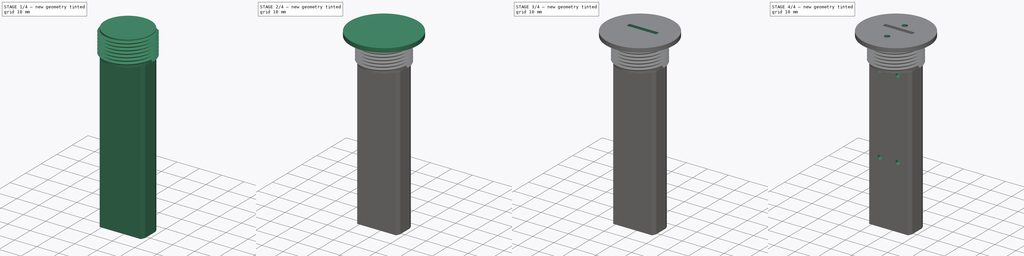
[diagram: build sequence overview — one tinted view per stage of 4, left to right]
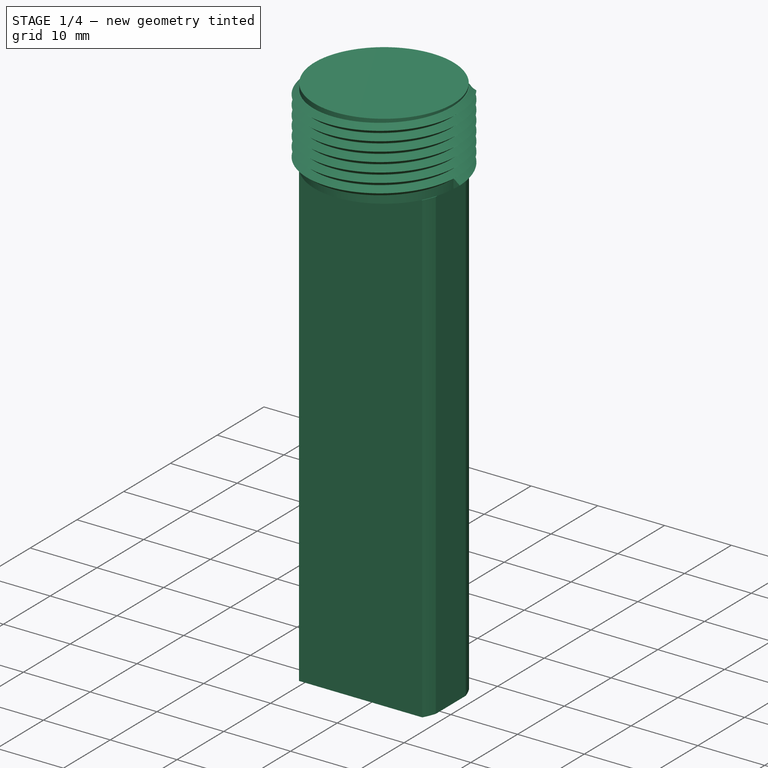
[diagram: stage 1 of 4 — iso view after this stage's code; geometry added in this stage tinted green]
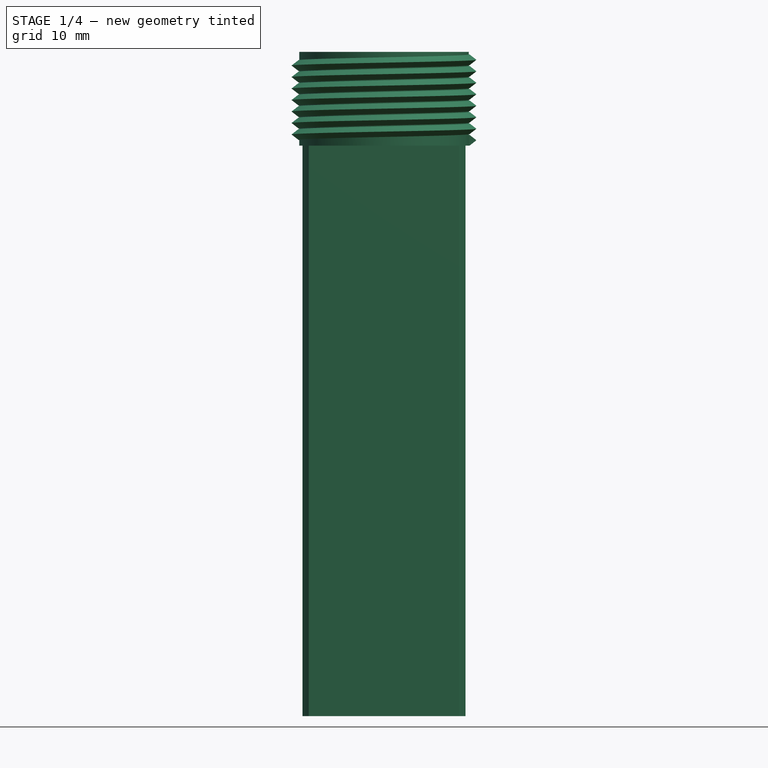
[diagram: stage 1 of 4 — front view after this stage's code; geometry added in this stage tinted green]
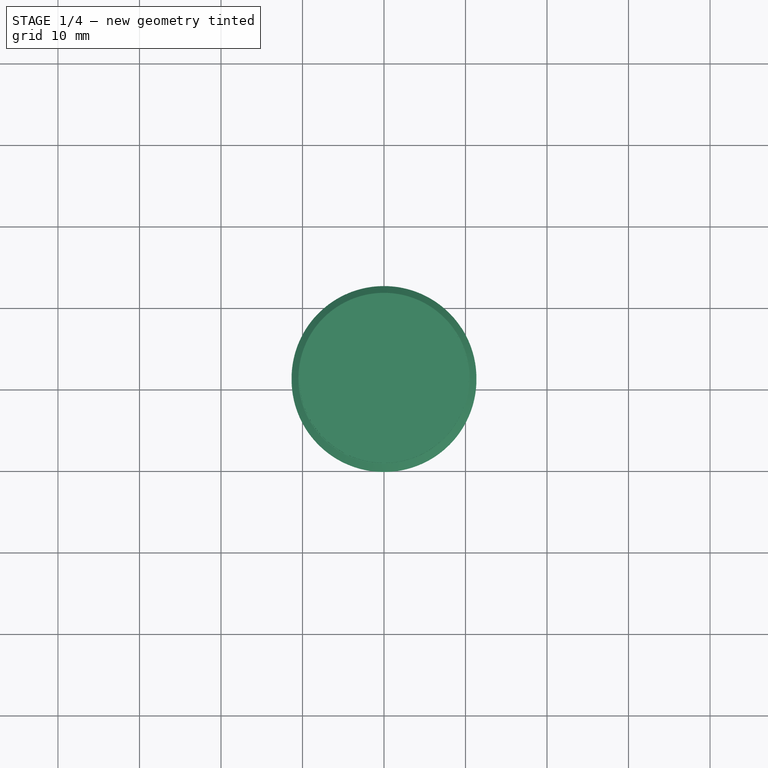
[diagram: stage 1 of 4 — top view after this stage's code; geometry added in this stage tinted green]
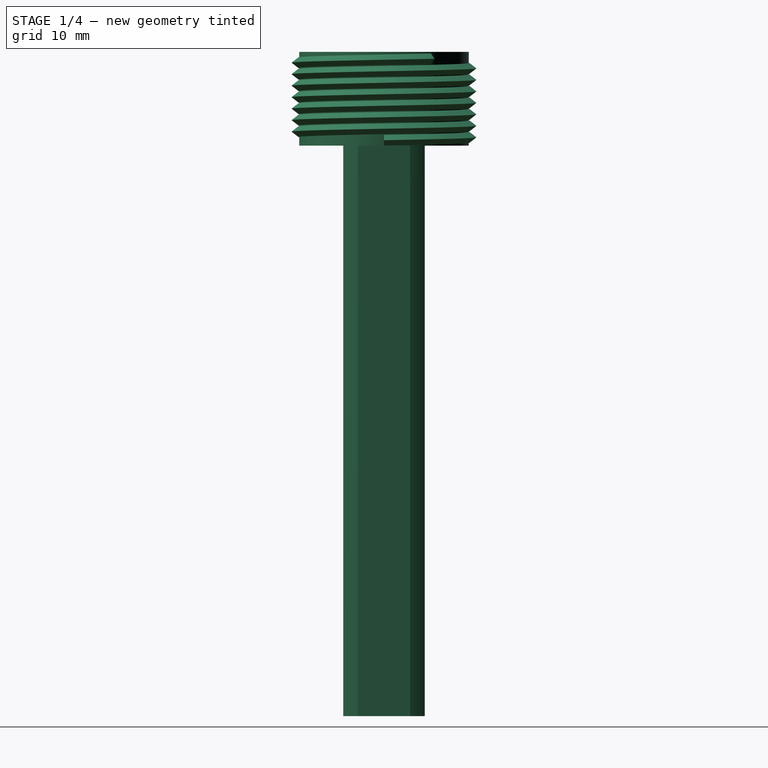
[diagram: stage 1 of 4 — right view after this stage's code; geometry added in this stage tinted green]
FCSTD DOCUMENT  (FreeCAD 0.19R24276 (Git))
Label: Probe_top_sop18_v2
License: All rights reserved
LicenseURL: http://en.wikipedia.org/wiki/All_rights_reserved
objects: Sketcher::SketchObject×11, PartDesign::Pocket×7, PartDesign::Pad×3, Part::Helix×1, PartDesign::FeatureBase×1, PartDesign::AdditivePipe×1, PartDesign::LinearPattern×1, PartDesign::Body×1
note: 37 computed .brp shape members not serialized (recipe doc carries the construction recipe); baked Part::Feature solids carry a one-line shape summary decoded from their .brp

FEATURE [Part::Helix] Helix
  Angle = 0
  AttacherType = Attacher::AttachEngine3D
  Height = 10
  LocalCoord = 0
  Pitch = 1.41
  Radius = 10.58
  Style = 1
FEATURE [PartDesign::FeatureBase] BaseFeature
  BaseFeature = -> Helix
FEATURE [Sketcher::SketchObject] Sketch
  FullyConstrained = true
  MapMode = 5
  Placement = pos=(0,0,0) rot=(1,0,0;1.5708rad)
  Support = -> [XZ_Plane]
  sketch-geometry (5):
    g0: LineSegment StartX=10 StartY=0 StartZ=0 EndX=10.5 EndY=0 EndZ=0
    g1: LineSegment StartX=10.5 StartY=0 StartZ=0 EndX=11.34 EndY=0.655 EndZ=0
    g2: LineSegment StartX=11.34 StartY=0.655 StartZ=0 EndX=10.5 EndY=1.31 EndZ=0
    g3: LineSegment StartX=10.5 StartY=1.31 StartZ=0 EndX=10 EndY=1.31 EndZ=0
    g4: LineSegment StartX=10 StartY=1.31 StartZ=0 EndX=10 EndY=0 EndZ=0
  constraints (15):
    c: PointOnObject(g0,g-1)
    c: Horizontal(g0)
    c: Coincident(g0,g1)
    c: Coincident(g1,g2)
    c: Coincident(g2,g3)
    c: Horizontal(g3)
    c: Coincident(g3,g4)
    c: Coincident(g4,g0)
    c: Vertical(g4)
    c: DistanceX(g0,g1) = 0.84
    c: DistanceX(g0,g0) = 0.5
    c: DistanceY(g4,g4) = 1.31
    c: Equal(g0,g3)
    c: Equal(g1,g2)
    c: DistanceX(g-1,g0) = 10.5
FEATURE [PartDesign::AdditivePipe] AdditivePipe
  AuxilleryCurvelinear = true
  AuxillerySpineTangent = false
  BaseFeature = -> BaseFeature
  Binormal = (0,0,0)
  Mode = 2
  Profile = -> Sketch
  Spine = -> BaseFeature
  SpineTangent = false
  Transformation = 0
  Transition = 0
FEATURE [Sketcher::SketchObject] Sketch001
  FullyConstrained = false
  MapMode = 5
  Support = -> [XY_Plane]
  sketch-geometry (1):
    g0: Circle CenterX=0 CenterY=0 CenterZ=0 NormalX=0 NormalY=0 NormalZ=1 AngleXU=0 Radius=10.4
  constraints (1):
    c: Radius(g0) = 10.4
FEATURE [PartDesign::Pad] Pad
  BaseFeature = -> AdditivePipe
  Direction = (1,1,1)
  Length = 11.5
  Length2 = 100
  Profile = -> Sketch001
  Type = 0
FEATURE [Sketcher::SketchObject] Sketch002
  FullyConstrained = true
  MapMode = 5
  Placement = pos=(0,0,0) rot=(1,0,0;3.14159rad)
  Support = -> [Pad]
  sketch-geometry (8):
    g0: ArcOfCircle CenterX=0 CenterY=0 CenterZ=0 NormalX=0 NormalY=0 NormalZ=1 AngleXU=0 Radius=10.5 StartAngle=2.64528 EndAngle=2.83175
    g1: LineSegment StartX=-9.23309 StartY=5 StartZ=0 EndX=9.23309 EndY=5 EndZ=0
    g2: LineSegment StartX=-9.23309 StartY=-5 StartZ=0 EndX=9.23309 EndY=-5 EndZ=0
    g3: ArcOfCircle CenterX=0 CenterY=0 CenterZ=0 NormalX=0 NormalY=0 NormalZ=1 AngleXU=0 Radius=10.5 StartAngle=5.78687 EndAngle=5.97334
    g4: LineSegment StartX=-10 StartY=3.20156 StartZ=0 EndX=-10 EndY=-3.20156 EndZ=0
    g5: LineSegment StartX=10 StartY=3.20156 StartZ=0 EndX=10 EndY=-3.20156 EndZ=0
    g6: ArcOfCircle CenterX=0 CenterY=0 CenterZ=0 NormalX=0 NormalY=0 NormalZ=1 AngleXU=0 Radius=10.5 StartAngle=3.45144 EndAngle=3.63791
    g7: ArcOfCircle CenterX=0 CenterY=0 CenterZ=0 NormalX=0 NormalY=0 NormalZ=1 AngleXU=0 Radius=10.5 StartAngle=0.309845 EndAngle=0.496317
  constraints (24):
    c: Coincident(g0,g-1)
    c: Radius(g0) = 10.5
    c: Horizontal(g1)
    c: Horizontal(g2)
    c: DistanceY(g0,g1) = 5
    c: DistanceY(g2,g0) = 5
    c: Coincident(g0,g1)
    c: Coincident(g7,g1)
    c: Equal(g0,g3)
    c: Coincident(g6,g2)
    c: Coincident(g3,g2)
    c: Coincident(g0,g3)
    c: Vertical(g4)
    c: Vertical(g5)
    c: DistanceX(g4,g0) = 10
    c: DistanceX(g0,g5) = 10
    c: Equal(g0,g6)
    c: Coincident(g0,g4)
    c: Coincident(g6,g4)
    c: Coincident(g0,g6)
    c: Equal(g3,g7)
    c: Coincident(g3,g5)
    c: Coincident(g7,g5)
    c: Coincident(g3,g7)
FEATURE [PartDesign::Pad] Pad001  label="Shaft"
  BaseFeature = -> Pad
  Direction = (1,1,1)
  Length = 70
  Length2 = 100
  Profile = -> Sketch002
  Type = 0
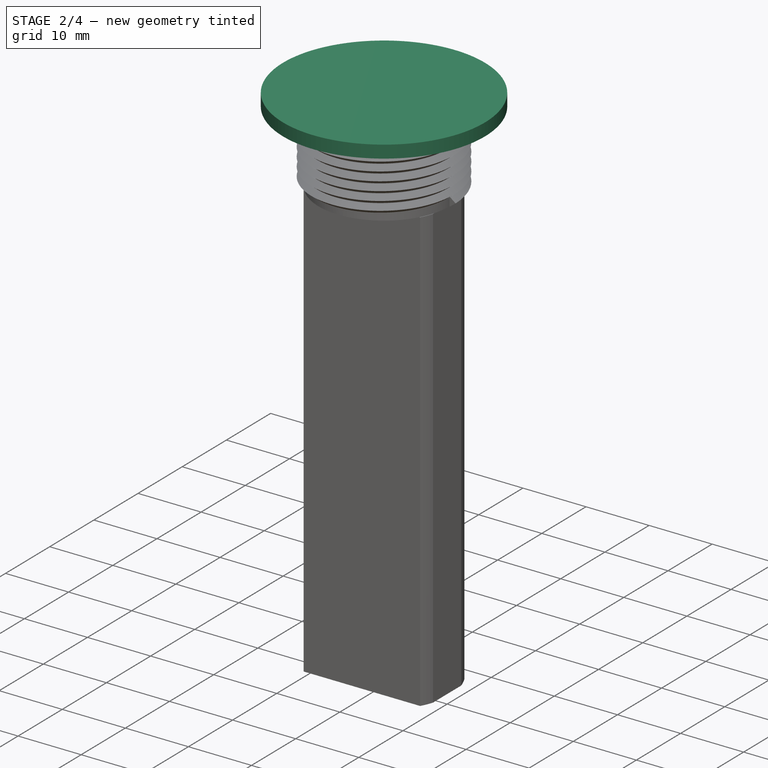
[diagram: stage 2 of 4 — iso view after this stage's code; geometry added in this stage tinted green]
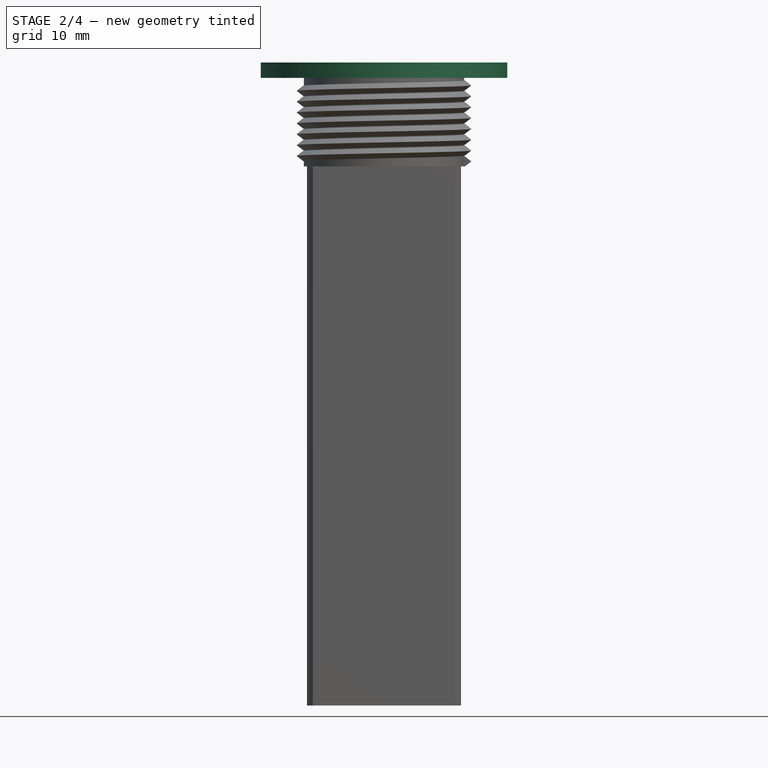
[diagram: stage 2 of 4 — front view after this stage's code; geometry added in this stage tinted green]
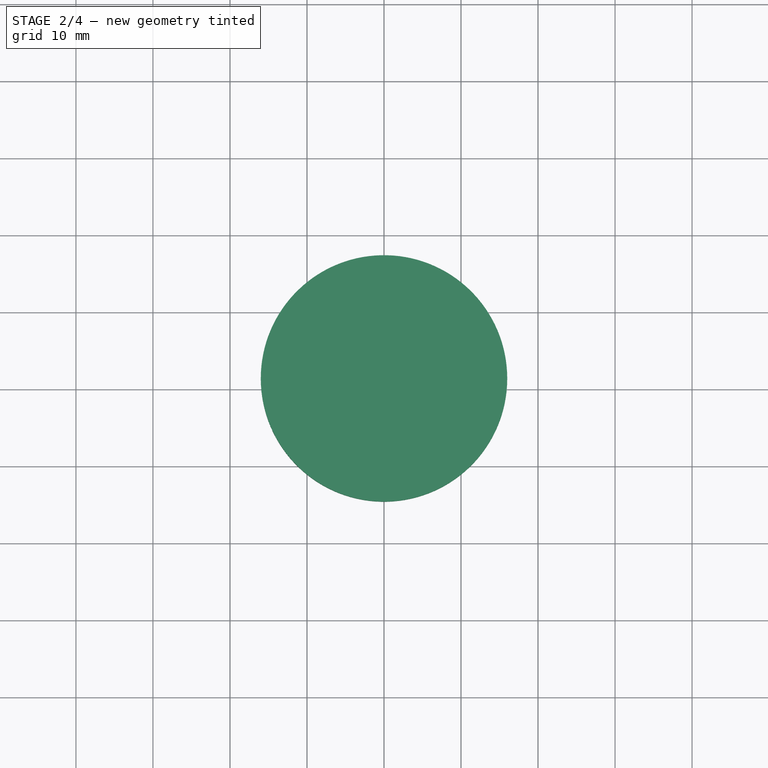
[diagram: stage 2 of 4 — top view after this stage's code; geometry added in this stage tinted green]
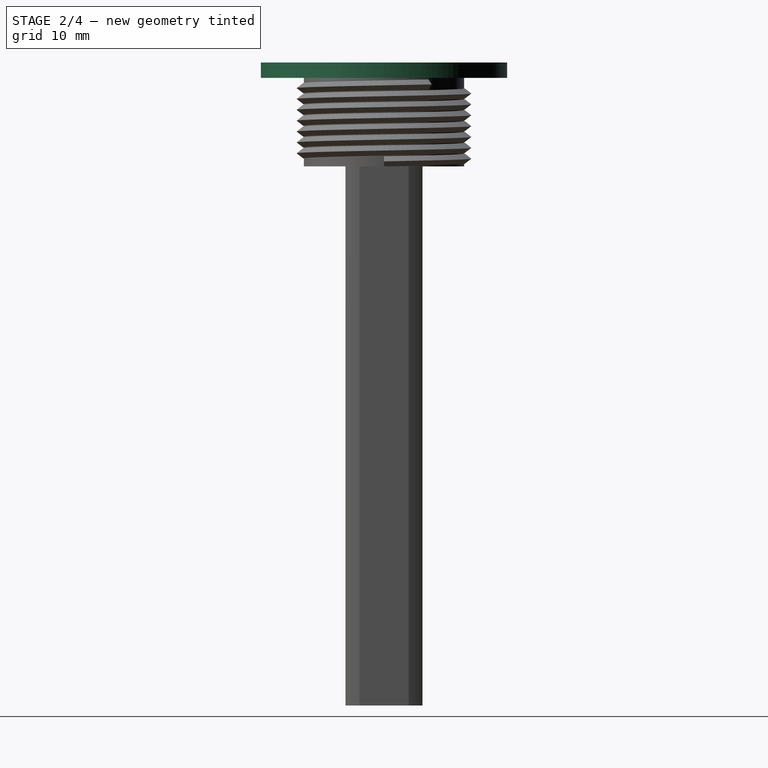
[diagram: stage 2 of 4 — right view after this stage's code; geometry added in this stage tinted green]
FEATURE [Sketcher::SketchObject] Sketch004
  FullyConstrained = true
  MapMode = 5
  Placement = pos=(0,0,11.5) rot=(0,0,1;0rad)
  sketch-geometry (1):
    g0: Circle CenterX=0 CenterY=0 CenterZ=0 NormalX=0 NormalY=0 NormalZ=1 AngleXU=0 Radius=16
  constraints (2):
    c: Coincident(g0,g-1)
    c: Radius(g0) = 16
FEATURE [PartDesign::Pad] Pad002  label="Pad_topflens"
  BaseFeature = -> Pad001
  Direction = (1,1,1)
  Length = 2
  Length2 = 100
  Profile = -> Sketch004
  Type = 0
FEATURE [Sketcher::SketchObject] Sketch005
  ExternalGeometry = -> [Pad002]
  FullyConstrained = true
  MapMode = 5
  Placement = pos=(0,5,0) rot=(0,0.707107,0.707107;3.14159rad)
  Support = -> [Pad002]
  sketch-geometry (4):
    g0: LineSegment StartX=-8 StartY=0 StartZ=0 EndX=8 EndY=0 EndZ=0
    g1: LineSegment StartX=8 StartY=0 StartZ=0 EndX=8 EndY=-70 EndZ=0
    g2: LineSegment StartX=8 StartY=-70 StartZ=0 EndX=-8 EndY=-70 EndZ=0
    g3: LineSegment StartX=-8 StartY=-70 StartZ=0 EndX=-8 EndY=0 EndZ=0
  constraints (11):
    c: Coincident(g0,g1)
    c: Coincident(g1,g2)
    c: Coincident(g2,g3)
    c: Coincident(g3,g0)
    c: Horizontal(g2)
    c: Vertical(g1)
    c: Vertical(g3)
    c: PointOnObject(g0,g-1)
    c: DistanceX(g0,g0) = 16
    c: Symmetric(g0,g0,g-2)
    c: PointOnObject(g1,g-3)
FEATURE [PartDesign::Pocket] Pocket  label="Pocket_2mm"
  BaseFeature = -> Pad002
  Length = 2
  Length2 = 100
  Profile = -> Sketch005
  Type = 0
FEATURE [Sketcher::SketchObject] Sketch006
  ExternalGeometry = -> [Pocket]
  FullyConstrained = true
  MapMode = 5
  Placement = pos=(0,3,-7e-16) rot=(0,0.707107,0.707107;3.14159rad)
  Support = -> [Pocket]
  sketch-geometry (4):
    g0: LineSegment StartX=-7 StartY=0 StartZ=0 EndX=7 EndY=0 EndZ=0
    g1: LineSegment StartX=7 StartY=0 StartZ=0 EndX=7 EndY=-70 EndZ=0
    g2: LineSegment StartX=7 StartY=-70 StartZ=0 EndX=-7 EndY=-70 EndZ=0
    g3: LineSegment StartX=-7 StartY=-70 StartZ=0 EndX=-7 EndY=0 EndZ=0
  constraints (11):
    c: Coincident(g0,g1)
    c: Coincident(g1,g2)
    c: Coincident(g2,g3)
    c: Coincident(g3,g0)
    c: Horizontal(g2)
    c: Vertical(g1)
    c: Vertical(g3)
    c: PointOnObject(g0,g-1)
    c: DistanceX(g0,g0) = 14
    c: Symmetric(g0,g0,g-2)
    c: PointOnObject(g1,g-3)
FEATURE [PartDesign::Pocket] Pocket001  label="Pocket_4mm"
  BaseFeature = -> Pocket
  Length = 4
  Length2 = 100
  Profile = -> Sketch006
  Type = 0
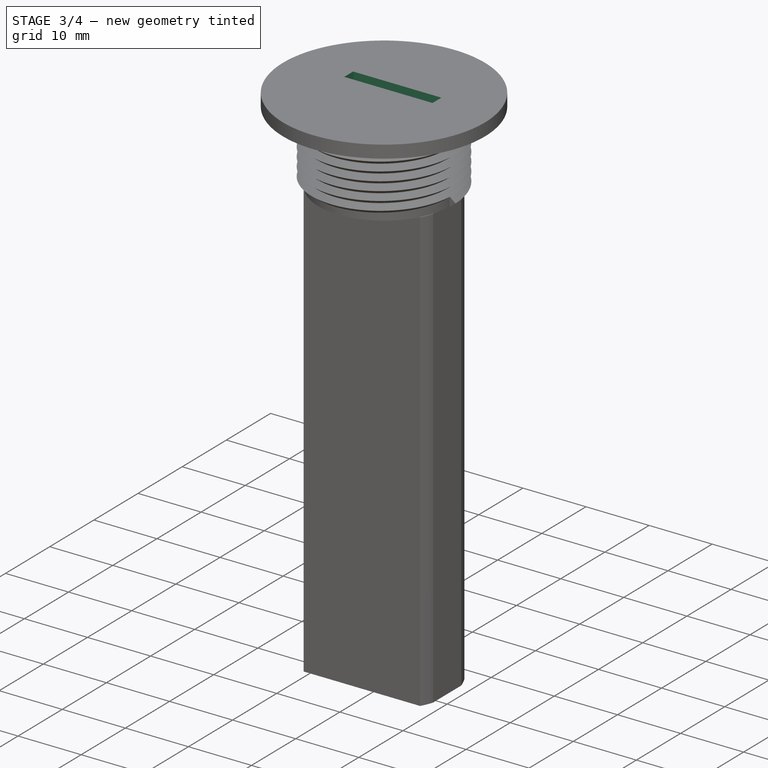
[diagram: stage 3 of 4 — iso view after this stage's code; geometry added in this stage tinted green]
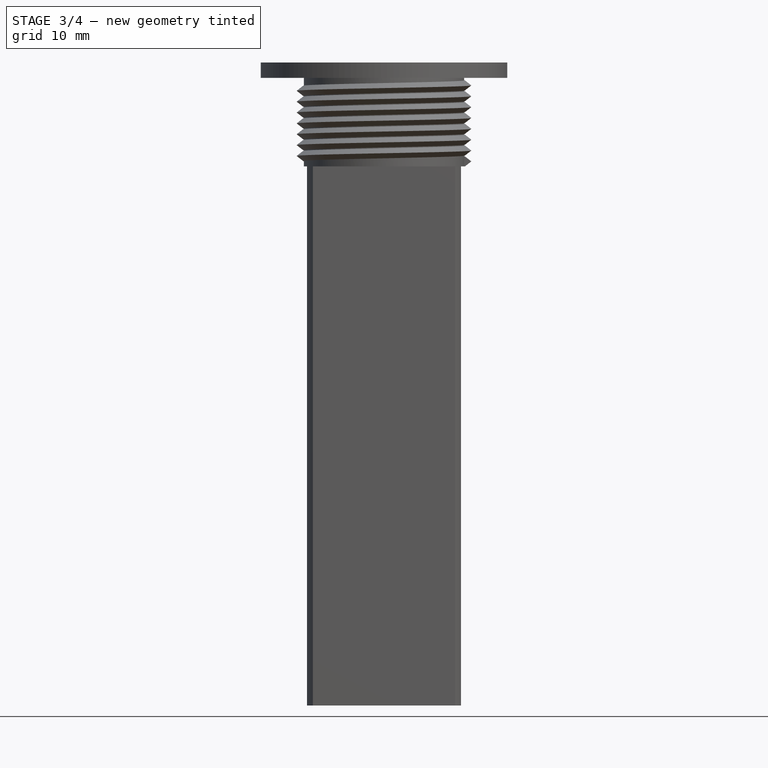
[diagram: stage 3 of 4 — front view after this stage's code; geometry added in this stage tinted green]
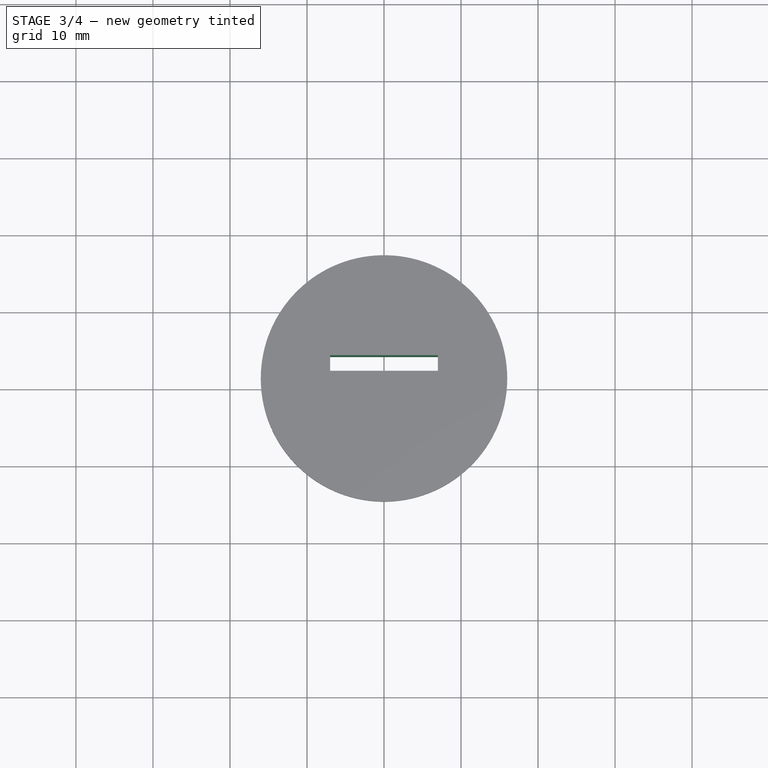
[diagram: stage 3 of 4 — top view after this stage's code; geometry added in this stage tinted green]
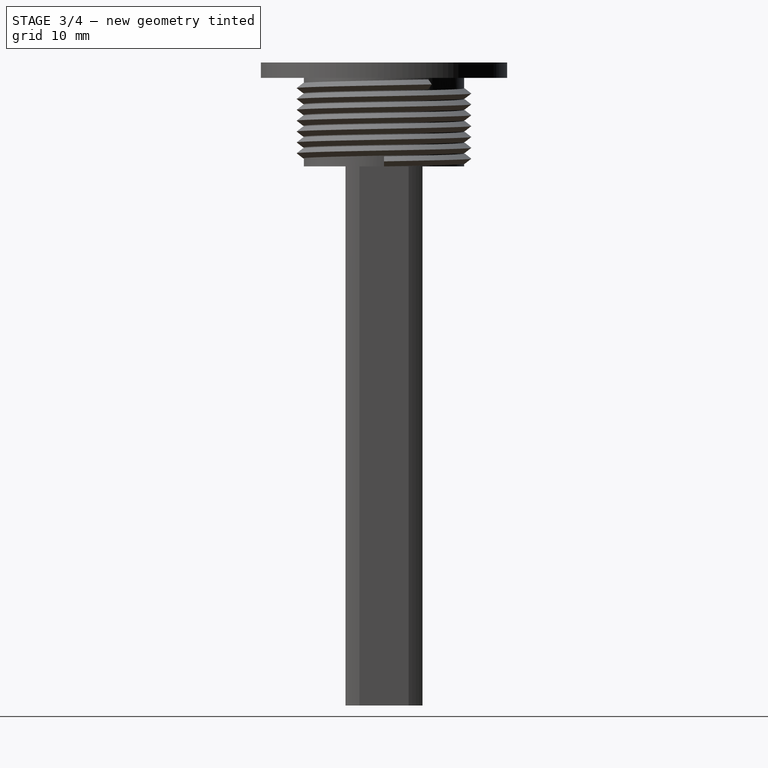
[diagram: stage 3 of 4 — right view after this stage's code; geometry added in this stage tinted green]
FEATURE [Sketcher::SketchObject] Sketch007
  ExternalGeometry = -> [Pocket001]
  FullyConstrained = true
  MapMode = 5
  Placement = pos=(0,0,0) rot=(1,0,0;3.14159rad)
  Support = -> [Pocket001]
  sketch-geometry (4):
    g0: LineSegment StartX=-7 StartY=-1 StartZ=0 EndX=7 EndY=-1 EndZ=0
    g1: LineSegment StartX=7 StartY=-1 StartZ=0 EndX=7 EndY=-3 EndZ=0
    g2: LineSegment StartX=7 StartY=-3 StartZ=0 EndX=-7 EndY=-3 EndZ=0
    g3: LineSegment StartX=-7 StartY=-3 StartZ=0 EndX=-7 EndY=-1 EndZ=0
  constraints (10):
    c: Coincident(g0,g1)
    c: Coincident(g1,g2)
    c: Coincident(g2,g3)
    c: Coincident(g3,g0)
    c: Vertical(g1)
    c: Vertical(g3)
    c: DistanceY(g3,g3) = 2
    c: Horizontal(g0)
    c: Coincident(g2,g-3)
    c: Coincident(g1,g-3)
FEATURE [PartDesign::Pocket] Pocket002  label="wire_hole"
  BaseFeature = -> Pocket001
  Length = 14
  Length2 = 100
  Profile = -> Sketch007
  Type = 0
FEATURE [Sketcher::SketchObject] Sketch008
  ExternalGeometry = -> [Pocket002]
  FullyConstrained = true
  MapMode = 5
  Placement = pos=(0,0,-70) rot=(1,0,0;3.14159rad)
  Support = -> [Pocket002]
  sketch-geometry (4):
    g0: LineSegment StartX=-8 StartY=-3 StartZ=0 EndX=8 EndY=-3 EndZ=0
    g1: LineSegment StartX=8 StartY=-3 StartZ=0 EndX=8 EndY=3 EndZ=0
    g2: LineSegment StartX=8 StartY=3 StartZ=0 EndX=-8 EndY=3 EndZ=0
    g3: LineSegment StartX=-8 StartY=3 StartZ=0 EndX=-8 EndY=-3 EndZ=0
  constraints (10):
    c: Coincident(g0,g1)
    c: Coincident(g1,g2)
    c: Coincident(g2,g3)
    c: Coincident(g3,g0)
    c: Horizontal(g2)
    c: Vertical(g1)
    c: Vertical(g3)
    c: Coincident(g0,g-3)
    c: Coincident(g0,g-4)
    c: DistanceY(g1,g1) = 6
FEATURE [PartDesign::Pocket] Pocket003  label="Pocket_glue"
  BaseFeature = -> Pocket002
  Length = 2
  Length2 = 100
  Profile = -> Sketch008
  Type = 0
FEATURE [Sketcher::SketchObject] Sketch009
  FullyConstrained = true
  MapMode = 5
  Placement = pos=(0,-1,2e-16) rot=(0,0.707107,0.707107;3.14159rad)
  Support = -> [Pocket003]
  sketch-geometry (11):
    g0: LineSegment StartX=-4.25 StartY=-2.75 StartZ=0 EndX=4.25 EndY=-2.75 EndZ=0
    g1: ArcOfCircle CenterX=-4.25 CenterY=-2.75 CenterZ=0 NormalX=0 NormalY=0 NormalZ=1 AngleXU=0 Radius=2.75 StartAngle=4.63955 EndAngle=10.3703
    g2: ArcOfCircle CenterX=4.25 CenterY=-2.75 CenterZ=0 NormalX=0 NormalY=0 NormalZ=1 AngleXU=0 Radius=2.75 StartAngle=5.33768 EndAngle=11.0684
    g3: LineSegment StartX=-4.25 StartY=-2.75 StartZ=0 EndX=-5.9601 EndY=-7.44846 EndZ=0
    g4: LineSegment StartX=4.25 StartY=-2.75 StartZ=0 EndX=5.9601 EndY=-7.44846 EndZ=0
    g5: LineSegment StartX=-5.85967 StartY=-4.97968 StartZ=0 EndX=-6.66487 EndY=-7.19195 EndZ=0
    g6: LineSegment StartX=-6.66487 StartY=-7.19195 StartZ=0 EndX=-5.25533 EndY=-7.70498 EndZ=0
    g7: LineSegment StartX=-5.25533 StartY=-7.70498 StartZ=0 EndX=-4.45013 EndY=-5.49271 EndZ=0
    g8: LineSegment StartX=4.45013 StartY=-5.49271 StartZ=0 EndX=5.25533 EndY=-7.70498 EndZ=0
    g9: LineSegment StartX=5.25533 StartY=-7.70498 StartZ=0 EndX=6.66487 EndY=-7.19195 EndZ=0
    g10: LineSegment StartX=6.66487 StartY=-7.19195 StartZ=0 EndX=5.85967 EndY=-4.97968 EndZ=0
  constraints (31):
    c: DistanceX(g0,g0) = 8.5
    c: DistanceY(g0,g-1) = 2.75
    c: Coincident(g1,g0)
    c: Coincident(g2,g0)
    c: Radius(g1) = 2.75
    c: Equal(g1,g2)
    c: Symmetric(g1,g2,g-2)
    c: Coincident(g3,g1)
    c: Coincident(g4,g2)
    c: Distance(g3) = 5
    c: Distance(g4) = 5
    c: Coincident(g5,g6)
    c: Coincident(g6,g7)
    c: Coincident(g8,g9)
    c: Coincident(g9,g10)
    c: Parallel(g5,g3)
    c: Parallel(g7,g3)
    c: Parallel(g8,g4)
    c: Parallel(g10,g4)
    c: Symmetric(g5,g6,g3)
    c: Symmetric(g8,g9,g4)
    c: Distance(g6) = 1.5
    c: Distance(g9) = 1.5
    c: PointOnObject(g3,g6)
    c: PointOnObject(g4,g9)
    c: Angle(g3,g0) = 1.91986
    c: Angle(g0,g4) = 1.91986
    c: Coincident(g1,g5)
    c: Coincident(g1,g7)
    c: Coincident(g2,g8)
    c: Coincident(g2,g10)
FEATURE [PartDesign::Pocket] Pocket004  label="Pocket_screwwire"
  BaseFeature = -> Pocket003
  Length = 1.5
  Length2 = 100
  Profile = -> Sketch009
  Type = 0
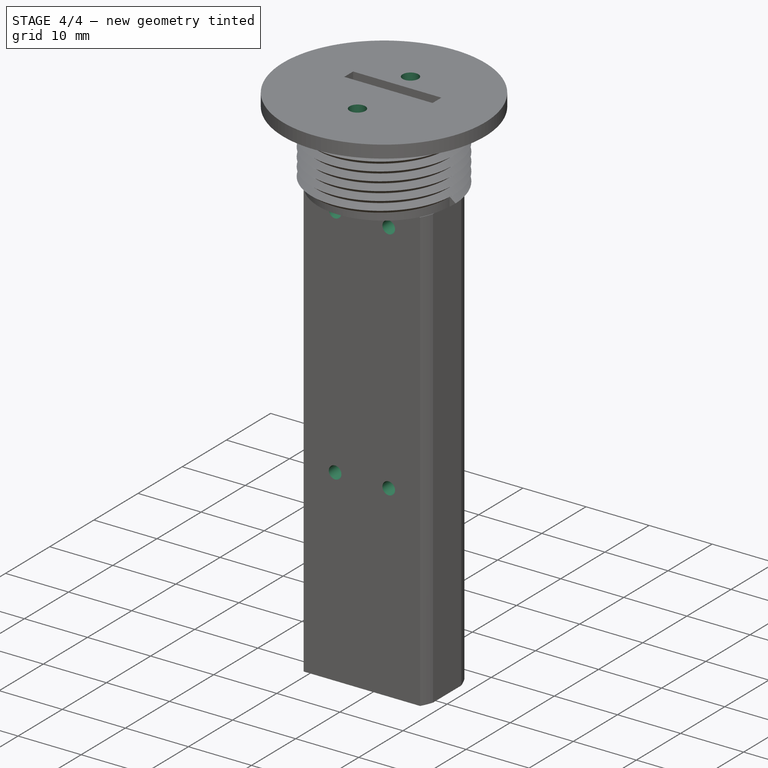
[diagram: stage 4 of 4 — iso view after this stage's code; geometry added in this stage tinted green]
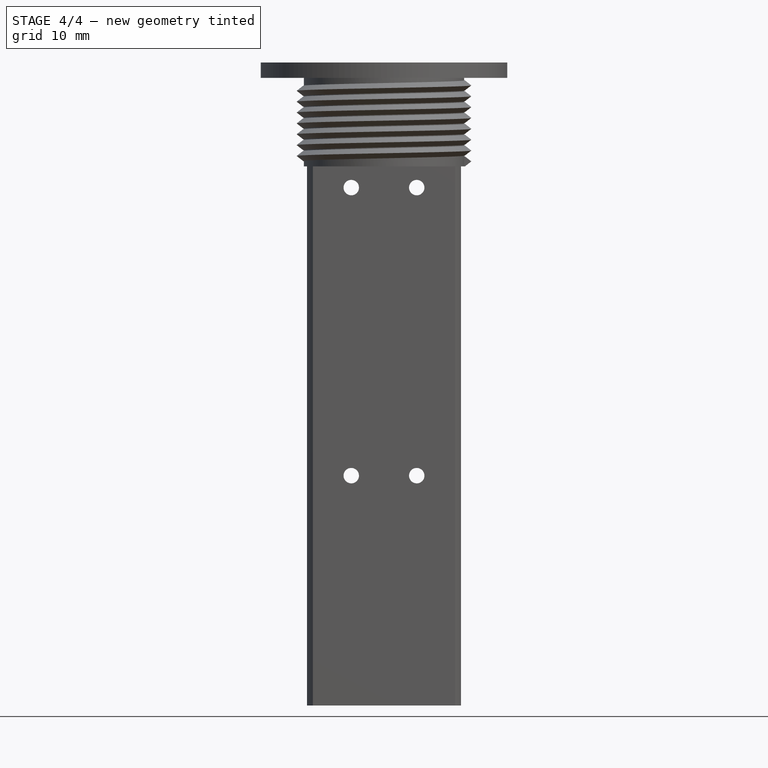
[diagram: stage 4 of 4 — front view after this stage's code; geometry added in this stage tinted green]
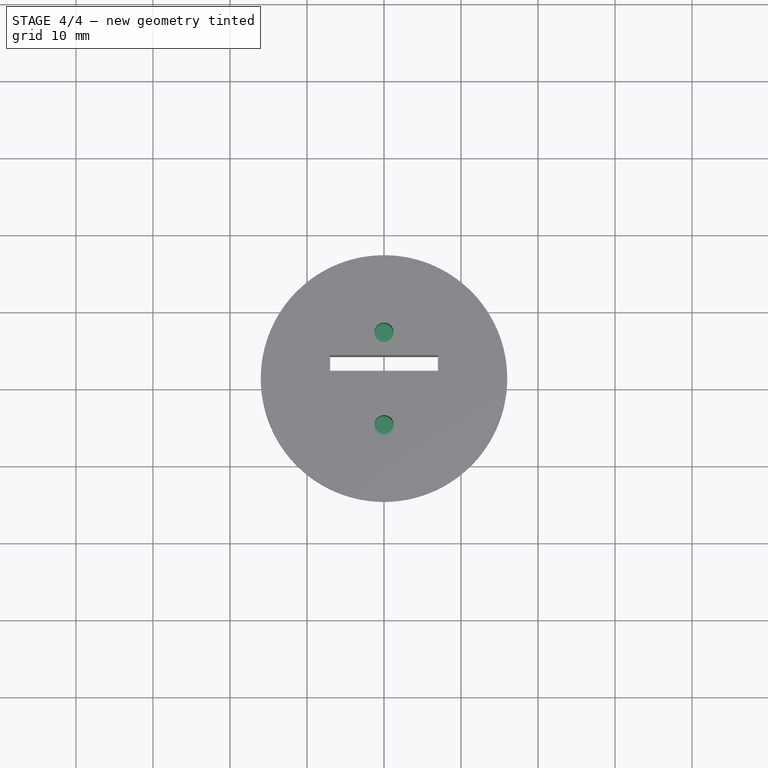
[diagram: stage 4 of 4 — top view after this stage's code; geometry added in this stage tinted green]
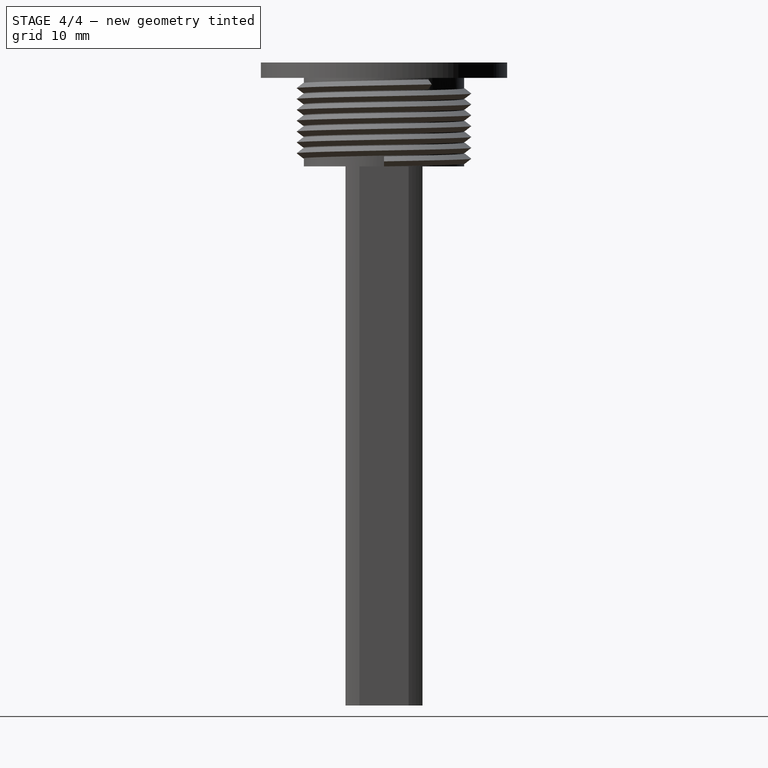
[diagram: stage 4 of 4 — right view after this stage's code; geometry added in this stage tinted green]
FEATURE [Sketcher::SketchObject] Sketch010
  FullyConstrained = true
  MapMode = 5
  Placement = pos=(0,-1,2e-16) rot=(0,0.707107,0.707107;3.14159rad)
  Support = -> [Pocket004]
  sketch-geometry (3):
    g0: LineSegment StartX=-4.25 StartY=-2.75 StartZ=0 EndX=4.25 EndY=-2.75 EndZ=0
    g1: Circle CenterX=-4.25 CenterY=-2.75 CenterZ=0 NormalX=0 NormalY=0 NormalZ=1 AngleXU=0 Radius=1
    g2: Circle CenterX=4.25 CenterY=-2.75 CenterZ=0 NormalX=0 NormalY=0 NormalZ=1 AngleXU=0 Radius=1
  constraints (7):
    c: DistanceX(g0,g0) = 8.5
    c: DistanceY(g0,g-1) = 2.75
    c: Coincident(g1,g0)
    c: Coincident(g2,g0)
    c: Symmetric(g1,g2,g-2)
    c: Radius(g1) = 1
    c: Equal(g1,g2)
FEATURE [PartDesign::Pocket] Pocket005  label="m3_screw_hole"
  BaseFeature = -> Pocket004
  Length = 4
  Length2 = 100
  Profile = -> Sketch010
  Type = 0
FEATURE [Sketcher::SketchObject] Sketch011
  FullyConstrained = true
  MapMode = 5
  Placement = pos=(0,0,13.5) rot=(0,0,1;0rad)
  Support = -> [Pocket005]
  sketch-geometry (2):
    g0: Circle CenterX=0 CenterY=6 CenterZ=0 NormalX=0 NormalY=0 NormalZ=1 AngleXU=0 Radius=1.25
    g1: Circle CenterX=0 CenterY=-6 CenterZ=0 NormalX=0 NormalY=0 NormalZ=1 AngleXU=0 Radius=1.25
  constraints (6):
    c: PointOnObject(g0,g-2)
    c: PointOnObject(g1,g-2)
    c: Radius(g0) = 1.25
    c: Equal(g0,g1)
    c: DistanceY(g1,g-1) = 6
    c: DistanceY(g-1,g0) = 6
FEATURE [PartDesign::Pocket] Pocket006  label="m3_screw_hole_top"
  BaseFeature = -> Pocket005
  Length = 10
  Length2 = 100
  Profile = -> Sketch011
  Type = 0
FEATURE [PartDesign::LinearPattern] LinearPattern
  BaseFeature = -> Pocket006
  Direction = -> Z_Axis
  Length = 37.4
  Occurrences = 2
  Originals = -> [Pocket004,Pocket005]
  Reversed = true
FEATURE [PartDesign::Body] Body
  BaseFeature = -> Helix
  Group = -> [BaseFeature,Sketch,AdditivePipe,Sketch001,Pad,Sketch002,Pad001,Sketch004,Pad002,Sketch005,Pocket,Sketch006,Pocket001,Sketch007,Pocket002,Sketch008,Pocket003,Sketch009,Pocket004,Sketch010,Pocket005,Sketch011,Pocket006,LinearPattern]
  Origin = -> Origin
  Tip = -> LinearPattern
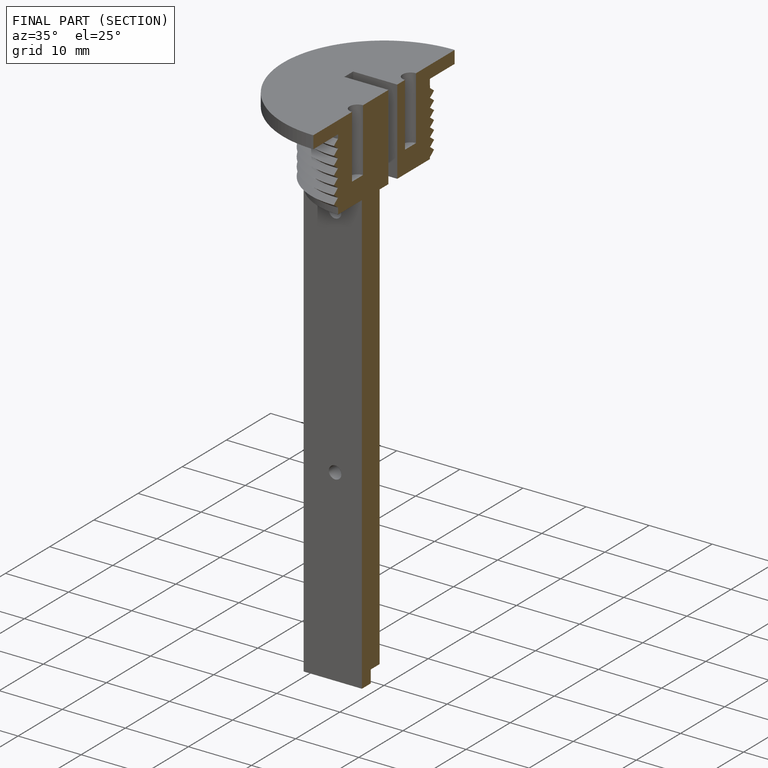
[diagram: finished part — half-section view (interior)]
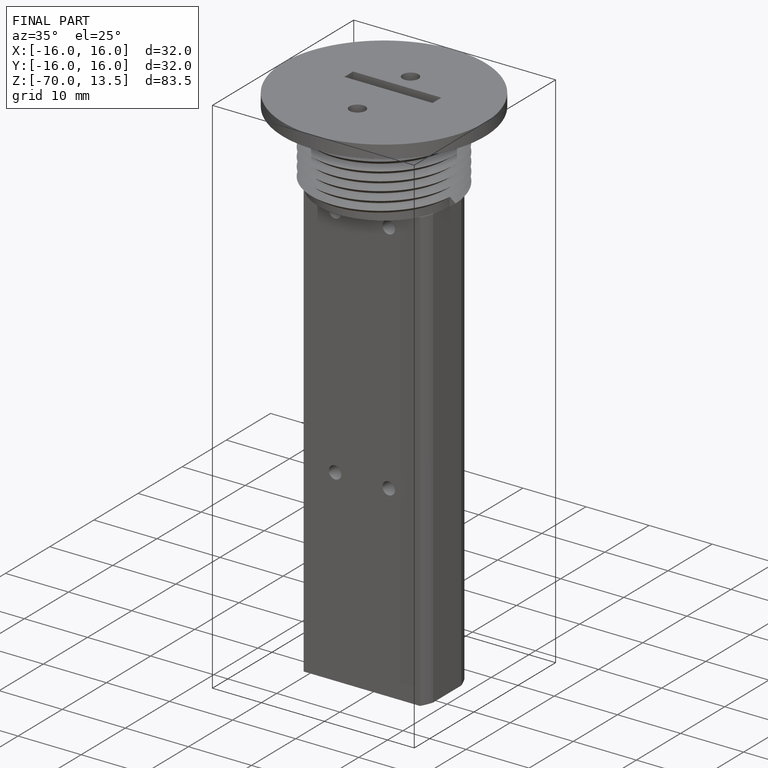
[diagram: finished part — iso view with bounding-box wireframe]
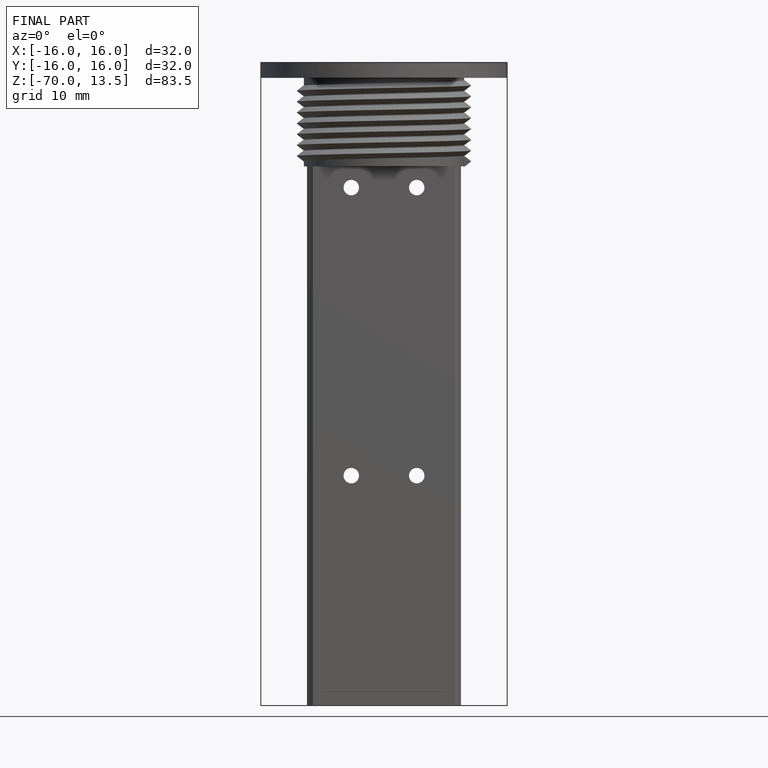
[diagram: finished part — front view with bounding-box wireframe]
